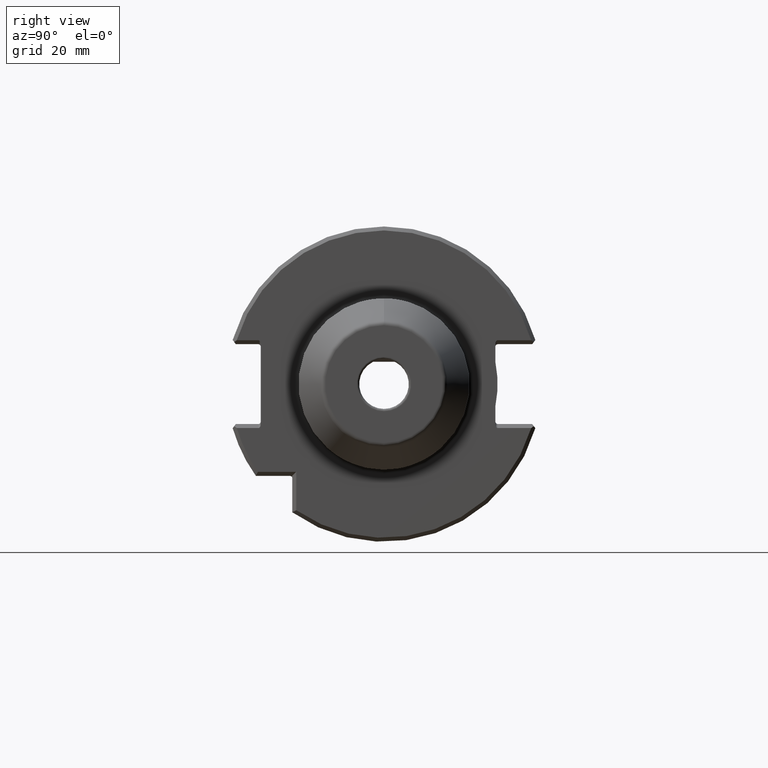
[diagram: clean part render]
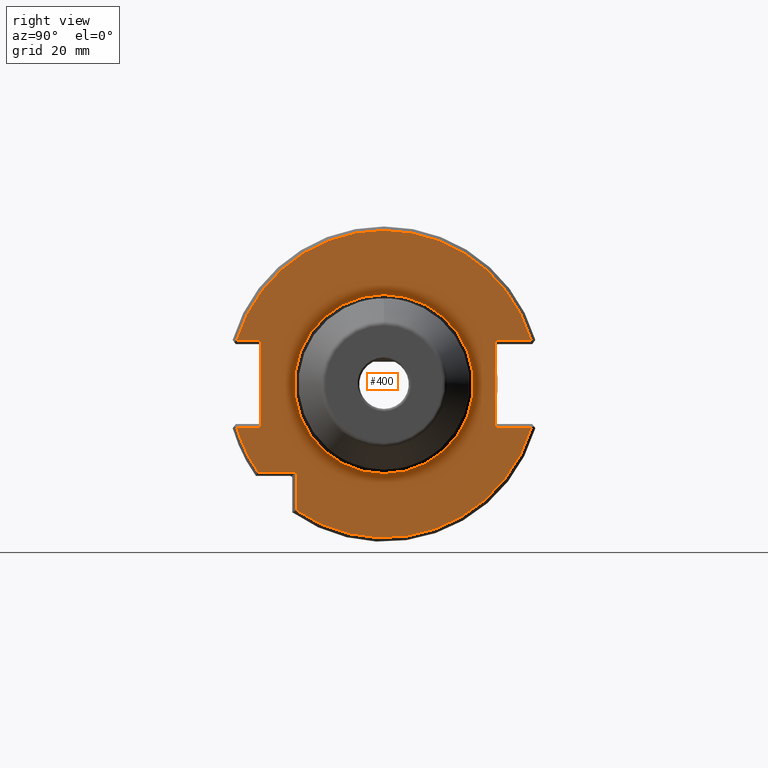
[diagram: same view with one face highlighted and labeled with its STEP entity id]
A machine part, right view. The second image highlights one B-rep face of the part: STEP entity #400.
In plain terms, the highlighted planar face has unit normal (1, 0, 0).
Its self-contained STEP definition (entity closure, byte-faithful):
#400 = ADVANCED_FACE( '', ( #832, #833 ), #834, .T. );
#832 = FACE_BOUND( '', #1264, .T. );
#833 = FACE_OUTER_BOUND( '', #1265, .T. );
#834 = PLANE( '', #1266 );
#1264 = EDGE_LOOP( '', ( #2314 ) );
#1265 = EDGE_LOOP( '', ( #2315, #2316, #2317, #2318, #2319, #2320, #2321, #2322, #2323, #2324, #2325, #2326, #2327, #2328, #2329 ) );
#1266 = AXIS2_PLACEMENT_3D( '', #2330, #2331, #2332 );
#2314 = ORIENTED_EDGE( '', *, *, #2755, .T. );
#2315 = ORIENTED_EDGE( '', *, *, #2738, .F. );
#2316 = ORIENTED_EDGE( '', *, *, #2603, .T. );
#2317 = ORIENTED_EDGE( '', *, *, #2729, .T. );
#2318 = ORIENTED_EDGE( '', *, *, #2439, .F. );
#2319 = ORIENTED_EDGE( '', *, *, #2607, .T. );
#2320 = ORIENTED_EDGE( '', *, *, #2543, .T. );
#2321 = ORIENTED_EDGE( '', *, *, #2761, .F. );
#2322 = ORIENTED_EDGE( '', *, *, #2640, .T. );
#2323 = ORIENTED_EDGE( '', *, *, #2576, .T. );
#2324 = ORIENTED_EDGE( '', *, *, #2451, .F. );
#2325 = ORIENTED_EDGE( '', *, *, #2677, .T. );
#2326 = ORIENTED_EDGE( '', *, *, #2431, .T. );
#2327 = ORIENTED_EDGE( '', *, *, #2365, .F. );
#2328 = ORIENTED_EDGE( '', *, *, #2524, .T. );
#2329 = ORIENTED_EDGE( '', *, *, #2769, .T. );
#2330 = CARTESIAN_POINT( '', ( 19.0500000000000, 0.000000000000000, 31.9250000000000 ) );
#2331 = DIRECTION( '', ( 1.00000000000000, 0.000000000000000, 0.000000000000000 ) );
#2332 = DIRECTION( '', ( 0.000000000000000, 0.000000000000000, -1.00000000000000 ) );
#2365 = EDGE_CURVE( '', #2780, #2782, #2783, .T. );
#2431 = EDGE_CURVE( '', #2897, #2782, #2898, .F. );
#2439 = EDGE_CURVE( '', #2910, #2903, #2912, .T. );
#2451 = EDGE_CURVE( '', #2931, #2933, #2934, .T. );
#2524 = EDGE_CURVE( '', #2780, #3048, #3050, .F. );
#2543 = EDGE_CURVE( '', #3072, #3073, #3074, .F. );
#2576 = EDGE_CURVE( '', #3122, #2933, #3123, .T. );
#2603 = EDGE_CURVE( '', #3159, #3165, #3167, .T. );
#2607 = EDGE_CURVE( '', #2910, #3072, #3172, .T. );
#2640 = EDGE_CURVE( '', #3217, #3122, #3218, .F. );
#2677 = EDGE_CURVE( '', #2931, #2897, #3270, .T. );
#2729 = EDGE_CURVE( '', #3165, #2903, #3327, .T. );
#2738 = EDGE_CURVE( '', #3159, #3337, #3338, .T. );
#2755 = EDGE_CURVE( '', #3358, #3358, #3359, .F. );
#2761 = EDGE_CURVE( '', #3217, #3073, #3366, .T. );
#2769 = EDGE_CURVE( '', #3048, #3337, #3374, .T. );
#2780 = VERTEX_POINT( '', #3386 );
#2782 = VERTEX_POINT( '', #3389 );
#2783 = LINE( '', #3390, #3391 );
#2897 = VERTEX_POINT( '', #3553 );
#2898 = ELLIPSE( '', #3554, 0.707106781186547, 0.500000000000000 );
#2903 = VERTEX_POINT( '', #3560 );
#2910 = VERTEX_POINT( '', #3573 );
#2912 = CIRCLE( '', #3578, 30.9750000000000 );
#2931 = VERTEX_POINT( '', #3601 );
#2933 = VERTEX_POINT( '', #3606 );
#2934 = CIRCLE( '', #3607, 30.9750000000000 );
#3048 = VERTEX_POINT( '', #3792 );
#3050 = ELLIPSE( '', #3795, 0.707106781186547, 0.500000000000000 );
#3072 = VERTEX_POINT( '', #3824 );
#3073 = VERTEX_POINT( '', #3825 );
#3074 = ELLIPSE( '', #3826, 0.707106781186546, 0.500000000000000 );
#3122 = VERTEX_POINT( '', #3897 );
#3123 = LINE( '', #3898, #3899 );
#3159 = VERTEX_POINT( '', #4023 );
#3165 = VERTEX_POINT( '', #4033 );
#3167 = LINE( '', #4036, #4037 );
#3172 = LINE( '', #4044, #4045 );
#3217 = VERTEX_POINT( '', #4114 );
#3218 = ELLIPSE( '', #4115, 0.707106781186546, 0.500000000000000 );
#3270 = LINE( '', #4276, #4277 );
#3327 = LINE( '', #4387, #4388 );
#3337 = VERTEX_POINT( '', #4400 );
#3338 = CIRCLE( '', #4401, 30.9750000000000 );
#3358 = VERTEX_POINT( '', #4429 );
#3359 = CIRCLE( '', #4430, 18.0500000000000 );
#3366 = LINE( '', #4438, #4439 );
#3374 = LINE( '', #4449, #4450 );
#3386 = CARTESIAN_POINT( '', ( 19.0500000000000, -24.8500000000000, -8.14289321881345 ) );
#3389 = CARTESIAN_POINT( '', ( 19.0500000000000, -24.8500000000000, 8.14289321881347 ) );
#3390 = CARTESIAN_POINT( '', ( 19.0500000000000, -24.8500000000000, 31.9250000000000 ) );
#3391 = VECTOR( '', #4460, 1000.00000000000 );
#3553 = CARTESIAN_POINT( '', ( 19.0500000000000, -25.3500000000000, 8.85000000000000 ) );
#3554 = AXIS2_PLACEMENT_3D( '', #4544, #4545, #4546 );
#3560 = CARTESIAN_POINT( '', ( 19.0500000000000, -17.7000000000000, -25.4196897109308 ) );
#3573 = CARTESIAN_POINT( '', ( 19.0500000000000, 29.6838024013097, -8.85000000000000 ) );
#3578 = AXIS2_PLACEMENT_3D( '', #4554, #4555, #4556 );
#3601 = CARTESIAN_POINT( '', ( 19.0500000000000, -29.6838024013097, 8.85000000000000 ) );
#3606 = CARTESIAN_POINT( '', ( 19.0500000000000, 29.6838024013097, 8.85000000000000 ) );
#3607 = AXIS2_PLACEMENT_3D( '', #4570, #4571, #4572 );
#3792 = CARTESIAN_POINT( '', ( 19.0500000000000, -25.3500000000000, -8.85000000000000 ) );
#3795 = AXIS2_PLACEMENT_3D( '', #4655, #4656, #4657 );
#3824 = CARTESIAN_POINT( '', ( 19.0500000000000, 22.9500000000000, -8.85000000000000 ) );
#3825 = CARTESIAN_POINT( '', ( 19.0500000000000, 22.4500000000000, -8.14289321881345 ) );
#3826 = AXIS2_PLACEMENT_3D( '', #4683, #4684, #4685 );
#3897 = CARTESIAN_POINT( '', ( 19.0500000000000, 22.9500000000000, 8.85000000000000 ) );
#3898 = CARTESIAN_POINT( '', ( 19.0500000000000, 30.8934155606013, 8.85000000000000 ) );
#3899 = VECTOR( '', #4723, 1000.00000000000 );
#4023 = CARTESIAN_POINT( '', ( 19.0500000000000, -25.4196897109308, -17.7000000000000 ) );
#4033 = CARTESIAN_POINT( '', ( 19.0500000000000, -17.7000000000000, -17.7000000000000 ) );
#4036 = CARTESIAN_POINT( '', ( 19.0500000000000, -18.5000000000000, -17.7000000000000 ) );
#4037 = VECTOR( '', #4756, 1000.00000000000 );
#4044 = CARTESIAN_POINT( '', ( 19.0500000000000, 22.4500000000000, -8.85000000000000 ) );
#4045 = VECTOR( '', #4759, 1000.00000000000 );
#4114 = CARTESIAN_POINT( '', ( 19.0500000000000, 22.4500000000000, 8.14289321881345 ) );
#4115 = AXIS2_PLACEMENT_3D( '', #4795, #4796, #4797 );
#4276 = CARTESIAN_POINT( '', ( 19.0500000000000, -24.8500000000000, 8.85000000000000 ) );
#4277 = VECTOR( '', #4829, 1000.00000000000 );
#4387 = CARTESIAN_POINT( '', ( 19.0500000000000, -17.7000000000000, -26.0183709136449 ) );
#4388 = VECTOR( '', #4850, 1000.00000000000 );
#4400 = CARTESIAN_POINT( '', ( 19.0500000000000, -29.6838024013097, -8.85000000000000 ) );
#4401 = AXIS2_PLACEMENT_3D( '', #4856, #4857, #4858 );
#4429 = CARTESIAN_POINT( '', ( 19.0500000000000, 0.000000000000000, -18.0500000000000 ) );
#4430 = AXIS2_PLACEMENT_3D( '', #4870, #4871, #4872 );
#4438 = CARTESIAN_POINT( '', ( 19.0500000000000, 22.4500000000000, 31.9250000000000 ) );
#4439 = VECTOR( '', #4877, 1000.00000000000 );
#4449 = CARTESIAN_POINT( '', ( 19.0500000000000, -30.8934155606013, -8.85000000000000 ) );
#4450 = VECTOR( '', #4880, 1000.00000000000 );
#4460 = DIRECTION( '', ( 0.000000000000000, 0.000000000000000, 1.00000000000000 ) );
#4544 = CARTESIAN_POINT( '', ( 19.0500000000000, -25.3500000000000, 8.14289321881347 ) );
#4545 = DIRECTION( '', ( 1.00000000000000, 0.000000000000000, 0.000000000000000 ) );
#4546 = DIRECTION( '', ( 0.000000000000000, 0.000000000000000, -1.00000000000000 ) );
#4554 = CARTESIAN_POINT( '', ( 19.0500000000000, 0.000000000000000, 0.000000000000000 ) );
#4555 = DIRECTION( '', ( -1.00000000000000, 0.000000000000000, 0.000000000000000 ) );
#4556 = DIRECTION( '', ( 0.000000000000000, 0.000000000000000, 1.00000000000000 ) );
#4570 = CARTESIAN_POINT( '', ( 19.0500000000000, 0.000000000000000, 0.000000000000000 ) );
#4571 = DIRECTION( '', ( -1.00000000000000, 0.000000000000000, 0.000000000000000 ) );
#4572 = DIRECTION( '', ( 0.000000000000000, 0.000000000000000, 1.00000000000000 ) );
#4655 = CARTESIAN_POINT( '', ( 19.0500000000000, -25.3500000000000, -8.14289321881345 ) );
#4656 = DIRECTION( '', ( 1.00000000000000, 0.000000000000000, 0.000000000000000 ) );
#4657 = DIRECTION( '', ( 0.000000000000000, 0.000000000000000, -1.00000000000000 ) );
#4683 = CARTESIAN_POINT( '', ( 19.0500000000000, 22.9500000000000, -8.14289321881345 ) );
#4684 = DIRECTION( '', ( 1.00000000000000, 0.000000000000000, -0.000000000000000 ) );
#4685 = DIRECTION( '', ( 0.000000000000000, 0.000000000000000, 1.00000000000000 ) );
#4723 = DIRECTION( '', ( 0.000000000000000, 1.00000000000000, 0.000000000000000 ) );
#4756 = DIRECTION( '', ( 0.000000000000000, 1.00000000000000, 0.000000000000000 ) );
#4759 = DIRECTION( '', ( 0.000000000000000, -1.00000000000000, 0.000000000000000 ) );
#4795 = CARTESIAN_POINT( '', ( 19.0500000000000, 22.9500000000000, 8.14289321881345 ) );
#4796 = DIRECTION( '', ( 1.00000000000000, 0.000000000000000, -0.000000000000000 ) );
#4797 = DIRECTION( '', ( 0.000000000000000, 0.000000000000000, 1.00000000000000 ) );
#4829 = DIRECTION( '', ( 0.000000000000000, 1.00000000000000, 0.000000000000000 ) );
#4850 = DIRECTION( '', ( 0.000000000000000, 0.000000000000000, -1.00000000000000 ) );
#4856 = CARTESIAN_POINT( '', ( 19.0500000000000, 0.000000000000000, 0.000000000000000 ) );
#4857 = DIRECTION( '', ( -1.00000000000000, 0.000000000000000, 0.000000000000000 ) );
#4858 = DIRECTION( '', ( 0.000000000000000, 0.000000000000000, 1.00000000000000 ) );
#4870 = CARTESIAN_POINT( '', ( 19.0500000000000, 0.000000000000000, 9.32880341742787E-015 ) );
#4871 = DIRECTION( '', ( 1.00000000000000, 0.000000000000000, 0.000000000000000 ) );
#4872 = DIRECTION( '', ( 0.000000000000000, 0.000000000000000, -1.00000000000000 ) );
#4877 = DIRECTION( '', ( 0.000000000000000, 0.000000000000000, -1.00000000000000 ) );
#4880 = DIRECTION( '', ( 0.000000000000000, -1.00000000000000, 0.000000000000000 ) );